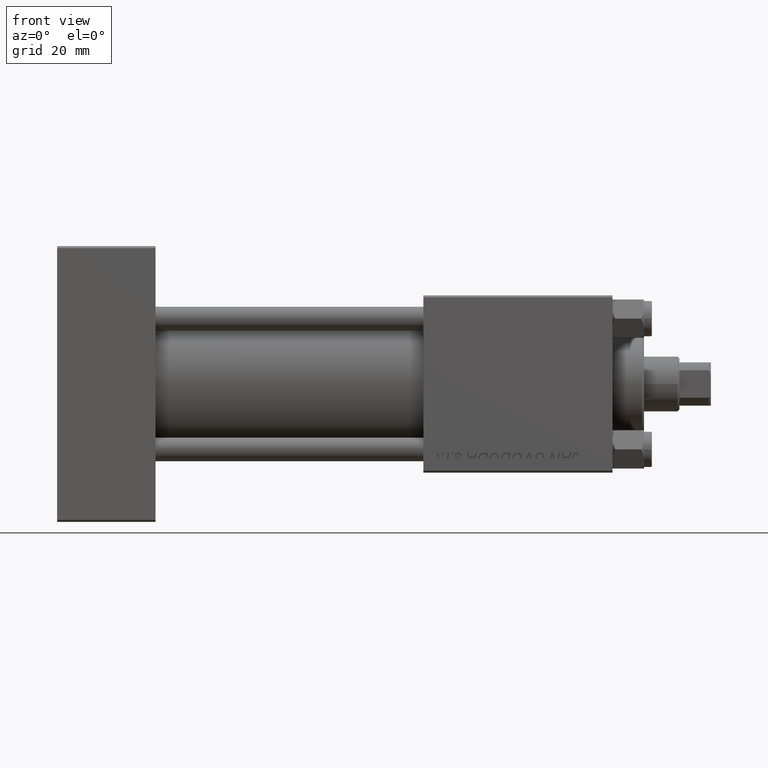
[diagram: clean part render]
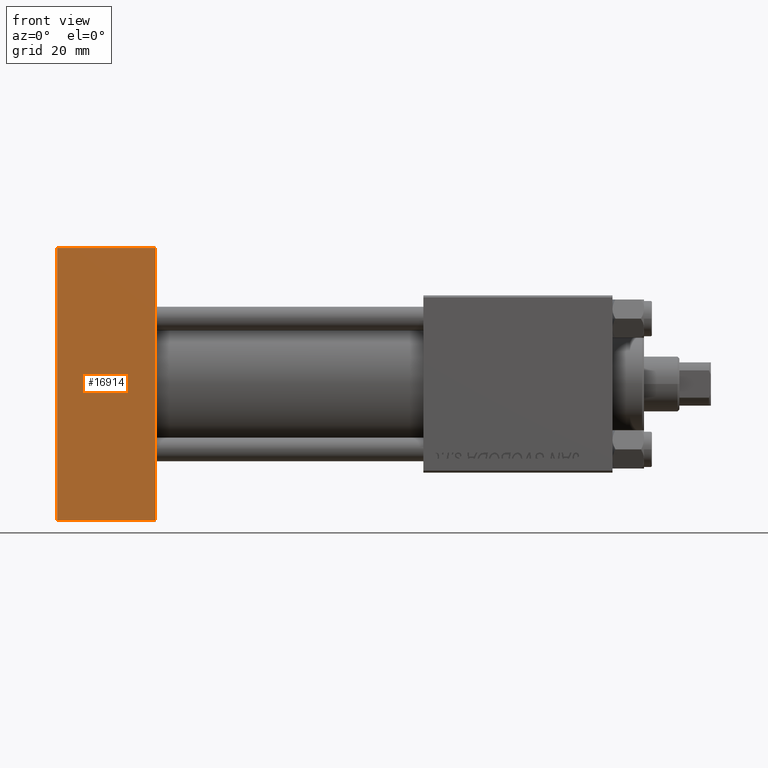
[diagram: same view with one face highlighted and labeled with its STEP entity id]
A machine part, front view. The second image highlights one B-rep face of the part: STEP entity #16914.
In plain terms, the highlighted planar face has unit normal (0, 1, 0).
Its self-contained STEP definition (entity closure, byte-faithful):
#425 = CARTESIAN_POINT ( 'NONE',  ( 25.00000000000000000, -22.49999999999999645, 34.50000000000000000 ) ) ;
#862 = CARTESIAN_POINT ( 'NONE',  ( 0.000000000000000000, -22.49999999999999645, -34.50000000000000000 ) ) ;
#1456 = CARTESIAN_POINT ( 'NONE',  ( 25.00000000000000000, -22.49999999999999645, 35.00000000000000000 ) ) ;
#2211 = DIRECTION ( 'NONE',  ( 0.000000000000000000, 0.000000000000000000, -1.000000000000000000 ) ) ;
#4707 = VERTEX_POINT ( 'NONE', #48836 ) ;
#9585 = CARTESIAN_POINT ( 'NONE',  ( 25.00000000000000000, -22.49999999999999645, -34.50000000000000000 ) ) ;
#11155 = VERTEX_POINT ( 'NONE', #862 ) ;
#13375 = LINE ( 'NONE', #9585, #44475 ) ;
#13725 = EDGE_CURVE ( 'NONE', #48194, #23768, #36567, .T. ) ;
#14702 = CARTESIAN_POINT ( 'NONE',  ( 25.00000000000000000, -22.49999999999999645, 35.00000000000000000 ) ) ;
#16007 = EDGE_CURVE ( 'NONE', #48194, #4707, #18885, .T. ) ;
#16914 = ADVANCED_FACE ( 'NONE', ( #21785 ), #49822, .F. ) ;
#18885 = LINE ( 'NONE', #34314, #46503 ) ;
#21305 = LINE ( 'NONE', #44051, #25307 ) ;
#21785 = FACE_OUTER_BOUND ( 'NONE', #39678, .T. ) ;
#23768 = VERTEX_POINT ( 'NONE', #37245 ) ;
#24751 = VECTOR ( 'NONE', #2211, 1000.000000000000000 ) ;
#24977 = DIRECTION ( 'NONE',  ( 1.000000000000000000, 0.000000000000000000, 0.000000000000000000 ) ) ;
#25307 = VECTOR ( 'NONE', #44309, 1000.000000000000000 ) ;
#26067 = DIRECTION ( 'NONE',  ( 0.000000000000000000, -0.000000000000000000, 1.000000000000000000 ) ) ;
#26971 = DIRECTION ( 'NONE',  ( -1.000000000000000000, 0.000000000000000000, 0.000000000000000000 ) ) ;
#28738 = EDGE_CURVE ( 'NONE', #11155, #23768, #13375, .T. ) ;
#34314 = CARTESIAN_POINT ( 'NONE',  ( 25.00000000000000000, -22.49999999999999645, 34.50000000000000000 ) ) ;
#34452 = EDGE_CURVE ( 'NONE', #4707, #11155, #21305, .T. ) ;
#34899 = ORIENTED_EDGE ( 'NONE', *, *, #16007, .T. ) ;
#36567 = LINE ( 'NONE', #1456, #24751 ) ;
#37245 = CARTESIAN_POINT ( 'NONE',  ( 25.00000000000000000, -22.49999999999999645, -34.50000000000000000 ) ) ;
#38677 = ORIENTED_EDGE ( 'NONE', *, *, #34452, .T. ) ;
#39678 = EDGE_LOOP ( 'NONE', ( #38677, #41281, #47007, #34899 ) ) ;
#41281 = ORIENTED_EDGE ( 'NONE', *, *, #28738, .T. ) ;
#44051 = CARTESIAN_POINT ( 'NONE',  ( 0.000000000000000000, -22.49999999999999645, 35.00000000000000000 ) ) ;
#44309 = DIRECTION ( 'NONE',  ( 0.000000000000000000, 0.000000000000000000, -1.000000000000000000 ) ) ;
#44475 = VECTOR ( 'NONE', #24977, 1000.000000000000000 ) ;
#45038 = DIRECTION ( 'NONE',  ( -0.000000000000000000, 1.000000000000000000, 0.000000000000000000 ) ) ;
#46503 = VECTOR ( 'NONE', #26971, 1000.000000000000000 ) ;
#47007 = ORIENTED_EDGE ( 'NONE', *, *, #13725, .F. ) ;
#47326 = AXIS2_PLACEMENT_3D ( 'NONE', #14702, #45038, #26067 ) ;
#48194 = VERTEX_POINT ( 'NONE', #425 ) ;
#48836 = CARTESIAN_POINT ( 'NONE',  ( 0.000000000000000000, -22.49999999999999645, 34.50000000000000000 ) ) ;
#49822 = PLANE ( 'NONE',  #47326 ) ;